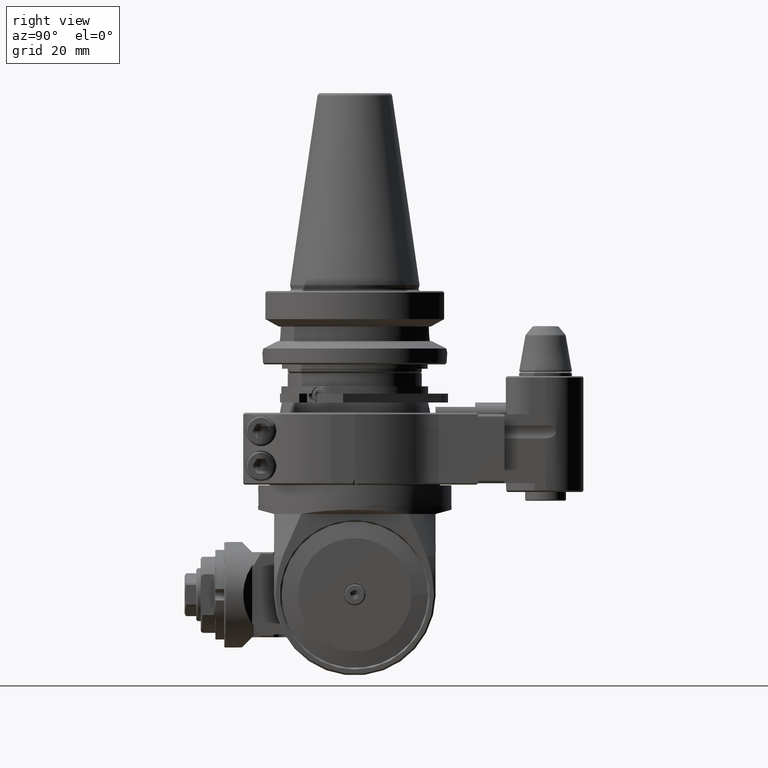
[diagram: clean part render]
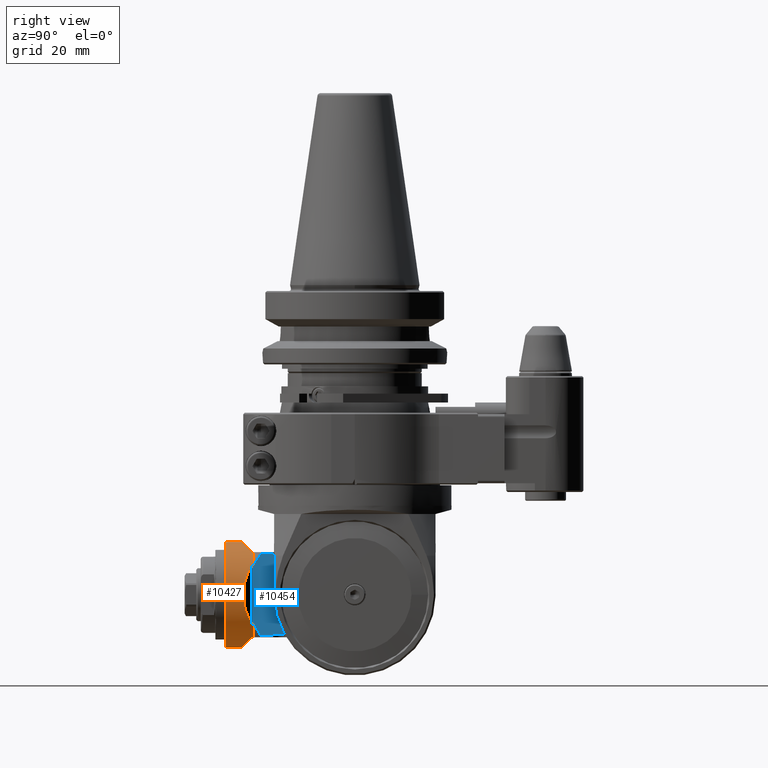
[diagram: same view with the hole feature highlighted: cylindrical wall and planar end face, labeled with their STEP entity ids]
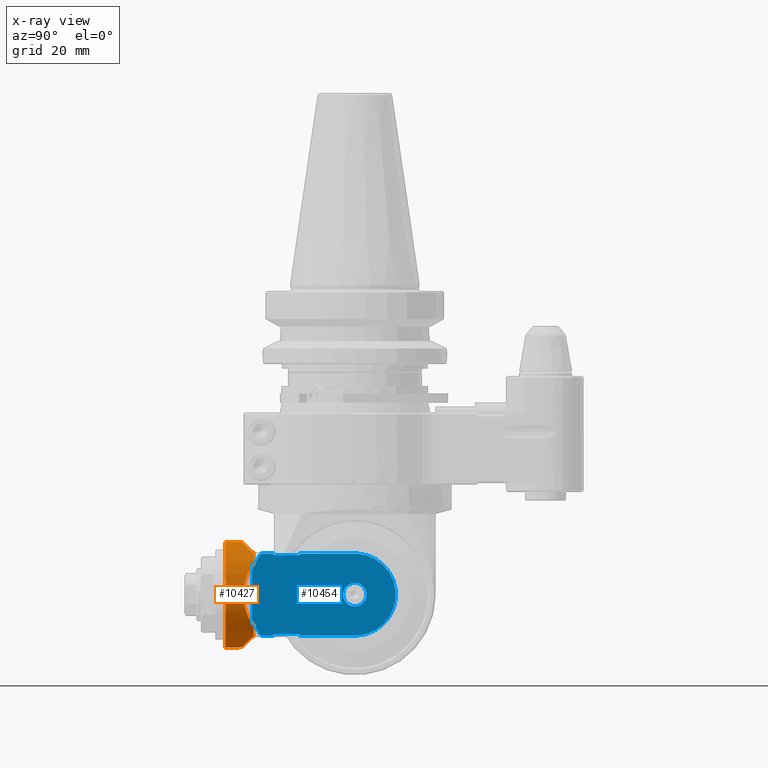
[diagram: x-ray of the same camera — body ghosted, the hole faces saturated]
A machine part, right view. The highlighted faces form one hole feature of diameter 36 mm: the cylindrical wall (entity #10427, orange) and its adjacent planar end face (entity #10454, blue) — they share a circular edge in the B-rep.
The next image is the same camera in x-ray (body ghosted, the hole faces saturated) — the bore reads through the body.
Wall:
#207=ELLIPSE('',#11458,25.4558441227157,18.);
#208=ELLIPSE('',#11460,25.4558441227157,18.);
#209=ELLIPSE('',#11462,25.4558441227157,18.);
#210=ELLIPSE('',#11464,25.4558441227157,18.);
#211=ELLIPSE('',#11466,25.4558441227157,18.);
#1132=LINE('',#18019,#1968);
#1134=LINE('',#18023,#1970);
#1145=LINE('',#18075,#1981);
#1146=LINE('',#18080,#1982);
#1147=LINE('',#18084,#1983);
#1148=LINE('',#18088,#1984);
#1149=LINE('',#18092,#1985);
#1150=LINE('',#18096,#1986);
#1151=LINE('',#18100,#1987);
#1968=VECTOR('',#14082,0.5);
#1970=VECTOR('',#14084,0.5000000000002);
#1981=VECTOR('',#14103,18.);
#1982=VECTOR('',#14108,0.5);
#1983=VECTOR('',#14111,0.5000000000001);
#1984=VECTOR('',#14114,0.5000000000001);
#1985=VECTOR('',#14117,0.5);
#1986=VECTOR('',#14120,0.5000000000001);
#1987=VECTOR('',#14123,0.5000000000001);
#2216=CYLINDRICAL_SURFACE('',#11455,18.);
#2737=FACE_OUTER_BOUND('',#3402,.T.);
#3402=EDGE_LOOP('',(#8982,#8983,#8984,#8985,#8986,#8987,#8988,#8989,#8990,
#8991,#8992,#8993,#8994,#8995,#8996,#8997,#8998,#8999,#9000,#9001,#9002));
#3907=CIRCLE('',#11456,18.);
#3908=CIRCLE('',#11457,18.);
#3909=CIRCLE('',#11459,18.);
#3910=CIRCLE('',#11461,18.);
#3911=CIRCLE('',#11463,18.);
#3912=CIRCLE('',#11465,18.);
#4819=VERTEX_POINT('',#18017);
#4820=VERTEX_POINT('',#18018);
#4821=VERTEX_POINT('',#18020);
#4822=VERTEX_POINT('',#18022);
#4835=VERTEX_POINT('',#18070);
#4836=VERTEX_POINT('',#18071);
#4837=VERTEX_POINT('',#18074);
#4838=VERTEX_POINT('',#18077);
#4839=VERTEX_POINT('',#18079);
#4840=VERTEX_POINT('',#18081);
#4841=VERTEX_POINT('',#18083);
#4842=VERTEX_POINT('',#18085);
#4843=VERTEX_POINT('',#18087);
#4844=VERTEX_POINT('',#18089);
#4845=VERTEX_POINT('',#18091);
#4846=VERTEX_POINT('',#18093);
#4847=VERTEX_POINT('',#18095);
#4848=VERTEX_POINT('',#18097);
#4849=VERTEX_POINT('',#18099);
#6236=EDGE_CURVE('',#4819,#4820,#1132,.T.);
#6238=EDGE_CURVE('',#4822,#4821,#1134,.T.);
#6252=EDGE_CURVE('',#4835,#4836,#3907,.T.);
#6253=EDGE_CURVE('',#4836,#4835,#3908,.T.);
#6254=EDGE_CURVE('',#4836,#4837,#1145,.T.);
#6255=EDGE_CURVE('',#4819,#4837,#207,.T.);
#6256=EDGE_CURVE('',#4838,#4820,#3909,.T.);
#6257=EDGE_CURVE('',#4838,#4839,#1146,.T.);
#6258=EDGE_CURVE('',#4840,#4839,#208,.T.);
#6259=EDGE_CURVE('',#4840,#4841,#1147,.T.);
#6260=EDGE_CURVE('',#4842,#4841,#3910,.T.);
#6261=EDGE_CURVE('',#4842,#4843,#1148,.T.);
#6262=EDGE_CURVE('',#4844,#4843,#209,.T.);
#6263=EDGE_CURVE('',#4844,#4845,#1149,.T.);
#6264=EDGE_CURVE('',#4846,#4845,#3911,.T.);
#6265=EDGE_CURVE('',#4846,#4847,#1150,.T.);
#6266=EDGE_CURVE('',#4848,#4847,#210,.T.);
#6267=EDGE_CURVE('',#4848,#4849,#1151,.T.);
#6268=EDGE_CURVE('',#4822,#4849,#3912,.T.);
#6269=EDGE_CURVE('',#4837,#4821,#211,.T.);
#8982=ORIENTED_EDGE('',*,*,#6252,.F.);
#8983=ORIENTED_EDGE('',*,*,#6253,.F.);
#8984=ORIENTED_EDGE('',*,*,#6254,.T.);
#8985=ORIENTED_EDGE('',*,*,#6255,.F.);
#8986=ORIENTED_EDGE('',*,*,#6236,.T.);
#8987=ORIENTED_EDGE('',*,*,#6256,.F.);
#8988=ORIENTED_EDGE('',*,*,#6257,.T.);
#8989=ORIENTED_EDGE('',*,*,#6258,.F.);
#8990=ORIENTED_EDGE('',*,*,#6259,.T.);
#8991=ORIENTED_EDGE('',*,*,#6260,.F.);
#8992=ORIENTED_EDGE('',*,*,#6261,.T.);
#8993=ORIENTED_EDGE('',*,*,#6262,.F.);
#8994=ORIENTED_EDGE('',*,*,#6263,.T.);
#8995=ORIENTED_EDGE('',*,*,#6264,.F.);
#8996=ORIENTED_EDGE('',*,*,#6265,.T.);
#8997=ORIENTED_EDGE('',*,*,#6266,.F.);
#8998=ORIENTED_EDGE('',*,*,#6267,.T.);
#8999=ORIENTED_EDGE('',*,*,#6268,.F.);
#9000=ORIENTED_EDGE('',*,*,#6238,.T.);
#9001=ORIENTED_EDGE('',*,*,#6269,.F.);
#9002=ORIENTED_EDGE('',*,*,#6254,.F.);
#10427=ADVANCED_FACE('',(#2737),#2216,.T.);
#11455=AXIS2_PLACEMENT_3D('',#18069,#14097,#14098);
#11456=AXIS2_PLACEMENT_3D('',#18072,#14099,#14100);
#11457=AXIS2_PLACEMENT_3D('',#18073,#14101,#14102);
#11458=AXIS2_PLACEMENT_3D('',#18076,#14104,#14105);
#11459=AXIS2_PLACEMENT_3D('',#18078,#14106,#14107);
#11460=AXIS2_PLACEMENT_3D('',#18082,#14109,#14110);
#11461=AXIS2_PLACEMENT_3D('',#18086,#14112,#14113);
#11462=AXIS2_PLACEMENT_3D('',#18090,#14115,#14116);
#11463=AXIS2_PLACEMENT_3D('',#18094,#14118,#14119);
#11464=AXIS2_PLACEMENT_3D('',#18098,#14121,#14122);
#11465=AXIS2_PLACEMENT_3D('',#18101,#14124,#14125);
#11466=AXIS2_PLACEMENT_3D('',#18102,#14126,#14127);
#14082=DIRECTION('',(-1.,-2.13162820728E-13,-1.278976924368E-13));
#14084=DIRECTION('',(1.,6.71462885293E-13,-4.725109192803E-13));
#14097=DIRECTION('center_axis',(1.,0.,0.));
#14098=DIRECTION('ref_axis',(0.,0.,-1.));
#14099=DIRECTION('center_axis',(1.,0.,0.));
#14100=DIRECTION('ref_axis',(0.,-1.,0.));
#14101=DIRECTION('center_axis',(1.,0.,0.));
#14102=DIRECTION('ref_axis',(0.,-1.,0.));
#14103=DIRECTION('',(-1.,0.,0.));
#14104=DIRECTION('center_axis',(-0.707106781186548,0.,0.707106781186548));
#14105=DIRECTION('ref_axis',(-0.707106781186548,0.,-0.707106781186548));
#14106=DIRECTION('center_axis',(-1.,0.,0.));
#14107=DIRECTION('ref_axis',(0.,-0.805555555555586,0.59252025021389));
#14108=DIRECTION('',(1.,-4.618527782441E-14,-1.101341240428E-13));
#14109=DIRECTION('center_axis',(-0.707106781186548,-0.707106781186548,0.));
#14110=DIRECTION('ref_axis',(-0.707106781186548,0.707106781186548,0.));
#14111=DIRECTION('',(-1.,-8.171241461239E-14,6.750155989719E-14));
#14112=DIRECTION('center_axis',(-1.,0.,0.));
#14113=DIRECTION('ref_axis',(0.,-0.552770798392605,-0.833333333333308));
#14114=DIRECTION('',(1.,0.,3.19744231092E-14));
#14115=DIRECTION('center_axis',(-0.707106781186548,0.,-0.707106781186548));
#14116=DIRECTION('ref_axis',(0.707106781186548,0.,-0.707106781186548));
#14117=DIRECTION('',(-1.,-1.7763568394E-14,-2.84217094304E-14));
#14118=DIRECTION('center_axis',(-1.,0.,0.));
#14119=DIRECTION('ref_axis',(0.,0.805555555555586,-0.59252025021389));
#14120=DIRECTION('',(1.,-8.171241461239E-14,-8.171241461239E-14));
#14121=DIRECTION('center_axis',(-0.707106781186548,0.707106781186548,0.));
#14122=DIRECTION('ref_axis',(0.707106781186548,0.707106781186548,0.));
#14123=DIRECTION('',(-1.,9.947598300639E-14,-1.030286966852E-13));
#14124=DIRECTION('center_axis',(-1.,0.,0.));
#14125=DIRECTION('ref_axis',(0.,0.552770798392605,0.833333333333308));
#14126=DIRECTION('center_axis',(-0.707106781186548,0.,0.707106781186548));
#14127=DIRECTION('ref_axis',(-0.707106781186548,0.,-0.707106781186548));
#18017=CARTESIAN_POINT('',(35.,-115.449874371066,14.999999999999));
#18018=CARTESIAN_POINT('',(34.5,-115.449874371066,14.999999999999));
#18019=CARTESIAN_POINT('',(35.,-115.449874371066,14.999999999999));
#18020=CARTESIAN_POINT('',(35.,-95.550125628934,14.999999999999));
#18022=CARTESIAN_POINT('',(34.5,-95.550125628934,14.999999999999));
#18023=CARTESIAN_POINT('',(34.5,-95.550125628934,14.999999999999));
#18069=CARTESIAN_POINT('Origin',(41.25,-105.5,-1.044609548601E-12));
#18070=CARTESIAN_POINT('',(44.0000002483,-123.5,-1.04681391283947E-12));
#18071=CARTESIAN_POINT('',(44.0000002483,-105.5,17.999999999999));
#18072=CARTESIAN_POINT('Origin',(44.0000002483,-105.5,-1.044609548601E-12));
#18073=CARTESIAN_POINT('Origin',(44.0000002483,-105.5,-1.044609548601E-12));
#18074=CARTESIAN_POINT('',(38.,-105.5,17.999999999999));
#18075=CARTESIAN_POINT('',(41.25,-105.5,17.999999999999));
#18076=CARTESIAN_POINT('Origin',(20.,-105.5,-1.044609548601E-12));
#18077=CARTESIAN_POINT('',(34.5,-120.,10.665364503849));
#18078=CARTESIAN_POINT('Origin',(34.5,-105.5,-1.044609548601E-12));
#18079=CARTESIAN_POINT('',(35.,-120.,10.665364503849));
#18080=CARTESIAN_POINT('',(34.5,-120.,10.665364503849));
#18081=CARTESIAN_POINT('',(35.,-120.,-10.665364503851));
#18082=CARTESIAN_POINT('Origin',(20.5,-105.5,-1.044609548601E-12));
#18083=CARTESIAN_POINT('',(34.5,-120.,-10.665364503851));
#18084=CARTESIAN_POINT('',(35.,-120.,-10.665364503851));
#18085=CARTESIAN_POINT('',(34.5,-115.449874371066,-15.000000000001));
#18086=CARTESIAN_POINT('Origin',(34.5,-105.5,-1.044609548601E-12));
#18087=CARTESIAN_POINT('',(35.,-115.449874371066,-15.000000000001));
#18088=CARTESIAN_POINT('',(34.5,-115.449874371066,-15.000000000001));
#18089=CARTESIAN_POINT('',(35.,-95.550125628934,-15.000000000001));
#18090=CARTESIAN_POINT('Origin',(20.,-105.5,-1.044609548601E-12));
#18091=CARTESIAN_POINT('',(34.5,-95.550125628934,-15.000000000001));
#18092=CARTESIAN_POINT('',(35.,-95.550125628934,-15.000000000001));
#18093=CARTESIAN_POINT('',(34.5,-91.,-10.665364503851));
#18094=CARTESIAN_POINT('Origin',(34.5,-105.5,-1.044609548601E-12));
#18095=CARTESIAN_POINT('',(35.,-91.,-10.665364503851));
#18096=CARTESIAN_POINT('',(34.5,-91.,-10.665364503851));
#18097=CARTESIAN_POINT('',(35.,-91.,10.665364503849));
#18098=CARTESIAN_POINT('Origin',(20.5,-105.5,-1.044609548601E-12));
#18099=CARTESIAN_POINT('',(34.5,-91.,10.665364503849));
#18100=CARTESIAN_POINT('',(35.,-91.,10.665364503849));
#18101=CARTESIAN_POINT('Origin',(34.5,-105.5,-1.044609548601E-12));
#18102=CARTESIAN_POINT('Origin',(20.,-105.5,-1.044609548601E-12));
End face:
#185=(
BOUNDED_CURVE()
B_SPLINE_CURVE(2,(#18312,#18313,#18314),.UNSPECIFIED.,.F.,.F.)
B_SPLINE_CURVE_WITH_KNOTS((3,3),(-7.07622438040693,-6.15854366616256),
 .UNSPECIFIED.)
CURVE()
GEOMETRIC_REPRESENTATION_ITEM()
RATIONAL_B_SPLINE_CURVE((1.06870414042478,1.10720002487388,1.13455574440962))
REPRESENTATION_ITEM('')
);
#186=(
BOUNDED_CURVE()
B_SPLINE_CURVE(2,(#18339,#18340,#18341),.UNSPECIFIED.,.F.,.F.)
B_SPLINE_CURVE_WITH_KNOTS((3,3),(6.15854366616256,7.07622438040693),
 .UNSPECIFIED.)
CURVE()
GEOMETRIC_REPRESENTATION_ITEM()
RATIONAL_B_SPLINE_CURVE((1.13455574440962,1.10720002487388,1.06870414042478))
REPRESENTATION_ITEM('')
);
#276=FACE_BOUND('',#3431,.T.);
#1148=LINE('',#18088,#1984);
#1149=LINE('',#18092,#1985);
#1190=LINE('',#18316,#2026);
#1191=LINE('',#18318,#2027);
#1192=LINE('',#18320,#2028);
#1193=LINE('',#18322,#2029);
#1194=LINE('',#18324,#2030);
#1195=LINE('',#18326,#2031);
#1196=LINE('',#18330,#2032);
#1197=LINE('',#18332,#2033);
#1198=LINE('',#18334,#2034);
#1199=LINE('',#18336,#2035);
#1200=LINE('',#18338,#2036);
#1984=VECTOR('',#14114,0.5000000000001);
#1985=VECTOR('',#14117,0.5);
#2026=VECTOR('',#14284,19.89974874213);
#2027=VECTOR('',#14285,4.199590830116);
#2028=VECTOR('',#14286,0.4731886124821);
#2029=VECTOR('',#14287,9.);
#2030=VECTOR('',#14288,0.4731886124821);
#2031=VECTOR('',#14289,19.66643457375);
#2032=VECTOR('',#14292,19.6664345737);
#2033=VECTOR('',#14293,0.4731886124821);
#2034=VECTOR('',#14294,9.);
#2035=VECTOR('',#14295,0.4731886124821);
#2036=VECTOR('',#14296,4.199590830116);
#2764=FACE_OUTER_BOUND('',#3430,.T.);
#3430=EDGE_LOOP('',(#9158,#9159,#9160,#9161,#9162,#9163,#9164,#9165,#9166,
#9167,#9168,#9169,#9170,#9171,#9172,#9173));
#3431=EDGE_LOOP('',(#9174));
#3945=CIRCLE('',#11526,14.);
#3946=CIRCLE('',#11527,4.);
#4842=VERTEX_POINT('',#18085);
#4843=VERTEX_POINT('',#18087);
#4844=VERTEX_POINT('',#18089);
#4845=VERTEX_POINT('',#18091);
#4903=VERTEX_POINT('',#18310);
#4904=VERTEX_POINT('',#18317);
#4905=VERTEX_POINT('',#18319);
#4906=VERTEX_POINT('',#18321);
#4907=VERTEX_POINT('',#18323);
#4908=VERTEX_POINT('',#18325);
#4909=VERTEX_POINT('',#18327);
#4910=VERTEX_POINT('',#18329);
#4911=VERTEX_POINT('',#18331);
#4912=VERTEX_POINT('',#18333);
#4913=VERTEX_POINT('',#18335);
#4914=VERTEX_POINT('',#18337);
#4915=VERTEX_POINT('',#18342);
#6261=EDGE_CURVE('',#4842,#4843,#1148,.T.);
#6263=EDGE_CURVE('',#4844,#4845,#1149,.T.);
#6349=EDGE_CURVE('',#4842,#4903,#185,.T.);
#6350=EDGE_CURVE('',#4843,#4844,#1190,.T.);
#6351=EDGE_CURVE('',#4904,#4903,#1191,.T.);
#6352=EDGE_CURVE('',#4905,#4904,#1192,.T.);
#6353=EDGE_CURVE('',#4906,#4905,#1193,.T.);
#6354=EDGE_CURVE('',#4906,#4907,#1194,.T.);
#6355=EDGE_CURVE('',#4908,#4907,#1195,.T.);
#6356=EDGE_CURVE('',#4908,#4909,#3945,.T.);
#6357=EDGE_CURVE('',#4910,#4909,#1196,.T.);
#6358=EDGE_CURVE('',#4911,#4910,#1197,.T.);
#6359=EDGE_CURVE('',#4912,#4911,#1198,.T.);
#6360=EDGE_CURVE('',#4913,#4912,#1199,.T.);
#6361=EDGE_CURVE('',#4914,#4913,#1200,.T.);
#6362=EDGE_CURVE('',#4914,#4845,#186,.T.);
#6363=EDGE_CURVE('',#4915,#4915,#3946,.T.);
#9158=ORIENTED_EDGE('',*,*,#6263,.F.);
#9159=ORIENTED_EDGE('',*,*,#6350,.F.);
#9160=ORIENTED_EDGE('',*,*,#6261,.F.);
#9161=ORIENTED_EDGE('',*,*,#6349,.T.);
#9162=ORIENTED_EDGE('',*,*,#6351,.F.);
#9163=ORIENTED_EDGE('',*,*,#6352,.F.);
#9164=ORIENTED_EDGE('',*,*,#6353,.F.);
#9165=ORIENTED_EDGE('',*,*,#6354,.T.);
#9166=ORIENTED_EDGE('',*,*,#6355,.F.);
#9167=ORIENTED_EDGE('',*,*,#6356,.T.);
#9168=ORIENTED_EDGE('',*,*,#6357,.F.);
#9169=ORIENTED_EDGE('',*,*,#6358,.F.);
#9170=ORIENTED_EDGE('',*,*,#6359,.F.);
#9171=ORIENTED_EDGE('',*,*,#6360,.F.);
#9172=ORIENTED_EDGE('',*,*,#6361,.F.);
#9173=ORIENTED_EDGE('',*,*,#6362,.T.);
#9174=ORIENTED_EDGE('',*,*,#6363,.T.);
#9903=PLANE('',#11525);
#10454=ADVANCED_FACE('',(#2764,#276),#9903,.T.);
#11525=AXIS2_PLACEMENT_3D('',#18315,#14282,#14283);
#11526=AXIS2_PLACEMENT_3D('',#18328,#14290,#14291);
#11527=AXIS2_PLACEMENT_3D('',#18343,#14297,#14298);
#14114=DIRECTION('',(1.,0.,3.19744231092E-14));
#14117=DIRECTION('',(-1.,-1.7763568394E-14,-2.84217094304E-14));
#14282=DIRECTION('center_axis',(0.,0.,-1.));
#14283=DIRECTION('ref_axis',(1.,0.,0.));
#14284=DIRECTION('',(0.,1.,0.));
#14285=DIRECTION('',(1.,-3.396555997335E-13,3.1639151756E-13));
#14286=DIRECTION('',(9.009634429277E-14,-1.,0.));
#14287=DIRECTION('',(1.,0.,0.));
#14288=DIRECTION('',(9.009634429277E-14,-1.,-1.12620430366E-14));
#14289=DIRECTION('',(1.,-1.484028167988E-13,0.));
#14290=DIRECTION('center_axis',(0.,0.,-1.));
#14291=DIRECTION('ref_axis',(-0.0618589574131887,-0.998084900891579,0.));
#14292=DIRECTION('',(-1.,-5.085257812414E-14,0.));
#14293=DIRECTION('',(9.009634429277E-14,1.,-1.501605738213E-14));
#14294=DIRECTION('',(-1.,0.,0.));
#14295=DIRECTION('',(-9.009634429277E-14,-1.,1.501605738213E-14));
#14296=DIRECTION('',(-1.,-3.400785830457E-13,-3.155455509355E-13));
#14297=DIRECTION('center_axis',(0.,0.,1.));
#14298=DIRECTION('ref_axis',(1.,0.,0.));
#18085=CARTESIAN_POINT('',(34.5,-115.449874371066,-15.000000000001));
#18087=CARTESIAN_POINT('',(35.,-115.449874371066,-15.000000000001));
#18088=CARTESIAN_POINT('',(34.5,-115.449874371066,-15.000000000001));
#18089=CARTESIAN_POINT('',(35.,-95.550125628934,-15.000000000001));
#18091=CARTESIAN_POINT('',(34.5,-95.550125628934,-15.000000000001));
#18092=CARTESIAN_POINT('',(35.,-95.550125628934,-15.000000000001));
#18310=CARTESIAN_POINT('',(32.,-119.47318861248,-15.000000000001));
#18312=CARTESIAN_POINT('Ctrl Pts',(34.5000000000263,-115.449874371019,-15.000000000001));
#18313=CARTESIAN_POINT('Ctrl Pts',(33.4602215258008,-117.330904405985,-15.000000000001));
#18314=CARTESIAN_POINT('Ctrl Pts',(32.0000000000028,-119.473188612478,-15.000000000001));
#18315=CARTESIAN_POINT('Origin',(-97.,-105.5,-15.000000000001));
#18316=CARTESIAN_POINT('',(35.,-115.449874371066,-15.000000000001));
#18317=CARTESIAN_POINT('',(27.8004091699,-119.47318861248,-15.000000000001));
#18318=CARTESIAN_POINT('',(27.8004091699,-119.47318861248,-15.000000000001));
#18319=CARTESIAN_POINT('',(27.8004091699,-119.,-15.000000000001));
#18320=CARTESIAN_POINT('',(27.8004091699,-119.,-15.000000000001));
#18321=CARTESIAN_POINT('',(18.8004091699,-119.,-15.000000000001));
#18322=CARTESIAN_POINT('',(18.8004091699,-119.,-15.000000000001));
#18323=CARTESIAN_POINT('',(18.8004091699,-119.47318861248,-15.000000000001));
#18324=CARTESIAN_POINT('',(18.8004091699,-119.,-15.000000000001));
#18325=CARTESIAN_POINT('',(-0.866025403780011,-119.47318861248,-15.000000000001));
#18326=CARTESIAN_POINT('',(-0.866025403870001,-119.47318861248,-15.000000000001));
#18327=CARTESIAN_POINT('',(-0.866025403809996,-91.52681138752,-15.000000000001));
#18328=CARTESIAN_POINT('Origin',(0.,-105.5,-15.000000000001));
#18329=CARTESIAN_POINT('',(18.8004091699,-91.52681138752,-15.000000000001));
#18330=CARTESIAN_POINT('',(18.8004091699,-91.52681138752,-15.000000000001));
#18331=CARTESIAN_POINT('',(18.8004091699,-92.,-15.000000000001));
#18332=CARTESIAN_POINT('',(18.8004091699,-92.,-15.000000000001));
#18333=CARTESIAN_POINT('',(27.8004091699,-92.,-15.000000000001));
#18334=CARTESIAN_POINT('',(27.8004091699,-92.,-15.000000000001));
#18335=CARTESIAN_POINT('',(27.8004091699,-91.52681138752,-15.000000000001));
#18336=CARTESIAN_POINT('',(27.8004091699,-91.52681138752,-15.000000000001));
#18337=CARTESIAN_POINT('',(32.,-91.52681138752,-15.000000000001));
#18338=CARTESIAN_POINT('',(32.,-91.52681138752,-15.000000000001));
#18339=CARTESIAN_POINT('Ctrl Pts',(32.0000000000028,-91.526811387522,-15.000000000001));
#18340=CARTESIAN_POINT('Ctrl Pts',(33.4602215258008,-93.6690955940147,-15.000000000001));
#18341=CARTESIAN_POINT('Ctrl Pts',(34.5000000000263,-95.5501256289814,-15.000000000001));
#18342=CARTESIAN_POINT('',(-4.,-105.5,-15.000000000001));
#18343=CARTESIAN_POINT('Origin',(0.,-105.5,-15.000000000001));